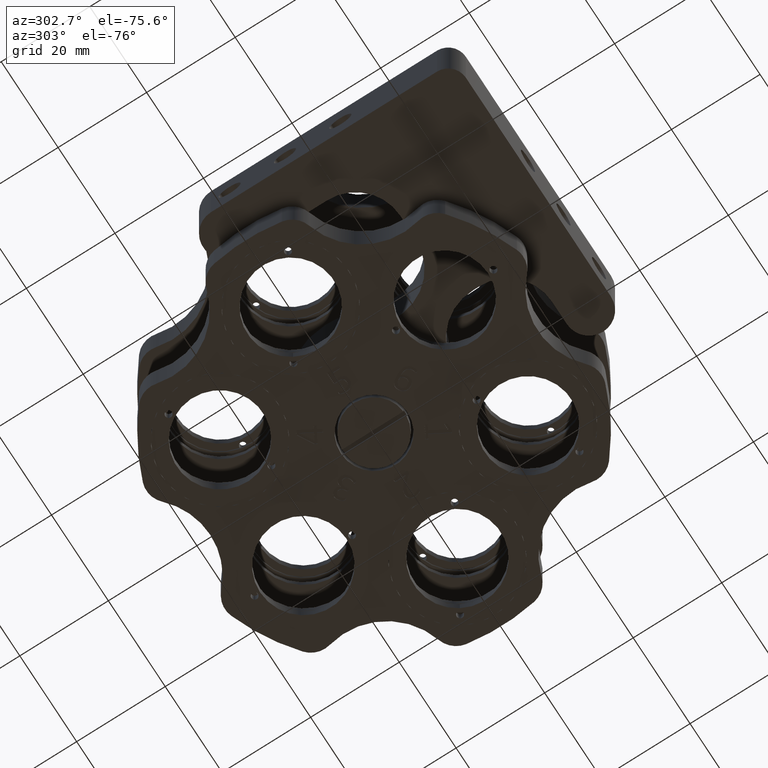
[diagram: clean part render]
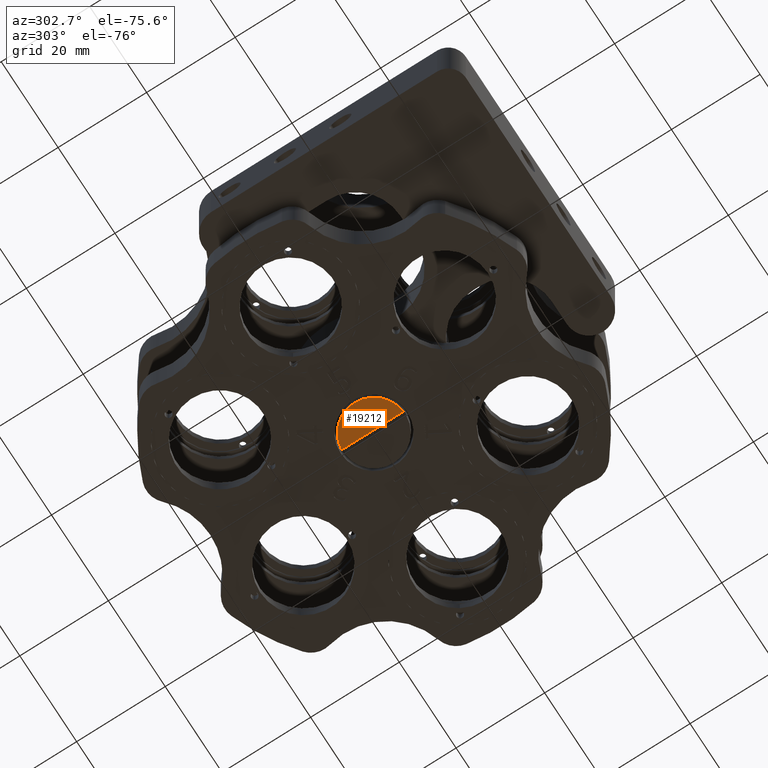
[diagram: same view with one face highlighted and labeled with its STEP entity id]
A machine part, auxiliary view. The second image highlights one B-rep face of the part: STEP entity #19212.
In plain terms, the highlighted planar face has unit normal (-0, 0, 1).
Its self-contained STEP definition (entity closure, byte-faithful):
#315 = DIRECTION ( 'NONE',  ( 1.665334536937734800E-016, -1.000000000000000000, 2.449212707644744700E-016 ) ) ;
#1148 = VERTEX_POINT ( 'NONE', #18681 ) ;
#3704 = LINE ( 'NONE', #6102, #4033 ) ;
#4033 = VECTOR ( 'NONE', #315, 1000.000000000000000 ) ;
#4134 = FACE_OUTER_BOUND ( 'NONE', #7263, .T. ) ;
#4381 = CARTESIAN_POINT ( 'NONE',  ( 1.431146867680866500E-014, 1.621543611191045300E-014, -27.00000000000000000 ) ) ;
#4889 = AXIS2_PLACEMENT_3D ( 'NONE', #4381, #10440, #24768 ) ;
#5101 = CARTESIAN_POINT ( 'NONE',  ( 1.431146867680866500E-014, 1.621543611191045300E-014, -27.00000000000000000 ) ) ;
#5474 = DIRECTION ( 'NONE',  ( 1.000000000000000000, 1.665334536937736500E-016, 0.0000000000000000000 ) ) ;
#6102 = CARTESIAN_POINT ( 'NONE',  ( -0.4999999999999856800, 1.613216938506356600E-014, -27.00000000000000000 ) ) ;
#6837 = EDGE_CURVE ( 'NONE', #18270, #20505, #16049, .T. ) ;
#7263 = EDGE_LOOP ( 'NONE', ( #19079, #10897, #8456 ) ) ;
#8401 = EDGE_CURVE ( 'NONE', #20505, #1148, #14202, .T. ) ;
#8456 = ORIENTED_EDGE ( 'NONE', *, *, #8401, .F. ) ;
#9190 = DIRECTION ( 'NONE',  ( -3.451266460341926600E-031, 2.449212707644744700E-016, 1.000000000000000000 ) ) ;
#10440 = DIRECTION ( 'NONE',  ( -3.366104245613551800E-031, 2.449212707644744700E-016, 1.000000000000000000 ) ) ;
#10897 = ORIENTED_EDGE ( 'NONE', *, *, #21861, .T. ) ;
#12546 = AXIS2_PLACEMENT_3D ( 'NONE', #5101, #9190, #25137 ) ;
#13821 = CARTESIAN_POINT ( 'NONE',  ( 1.431146867680866500E-014, 1.621543611191045300E-014, -27.00000000000000000 ) ) ;
#14202 = CIRCLE ( 'NONE', #21401, 6.999999999999999100 ) ;
#16049 = CIRCLE ( 'NONE', #12546, 6.999999999999999100 ) ;
#17926 = DIRECTION ( 'NONE',  ( -3.451266460341926600E-031, 2.449212707644744700E-016, 1.000000000000000000 ) ) ;
#18270 = VERTEX_POINT ( 'NONE', #24651 ) ;
#18681 = CARTESIAN_POINT ( 'NONE',  ( -0.4999999999999845100, -6.982120021884454400, -27.00000000000000000 ) ) ;
#19079 = ORIENTED_EDGE ( 'NONE', *, *, #6837, .F. ) ;
#19212 = ADVANCED_FACE ( 'NONE', ( #4134 ), #20509, .F. ) ;
#19944 = CARTESIAN_POINT ( 'NONE',  ( -6.999999999999984900, 1.547831415989187100E-014, -27.00000000000000000 ) ) ;
#20505 = VERTEX_POINT ( 'NONE', #19944 ) ;
#20509 = PLANE ( 'NONE',  #4889 ) ;
#21401 = AXIS2_PLACEMENT_3D ( 'NONE', #13821, #17926, #5474 ) ;
#21861 = EDGE_CURVE ( 'NONE', #18270, #1148, #3704, .T. ) ;
#24651 = CARTESIAN_POINT ( 'NONE',  ( -0.4999999999999869000, 6.982120021884484600, -27.00000000000000000 ) ) ;
#24768 = DIRECTION ( 'NONE',  ( 1.000000000000000000, 1.665334536937735300E-016, 2.958228394578794300E-031 ) ) ;
#25137 = DIRECTION ( 'NONE',  ( 1.000000000000000000, 1.665334536937736500E-016, 0.0000000000000000000 ) ) ;